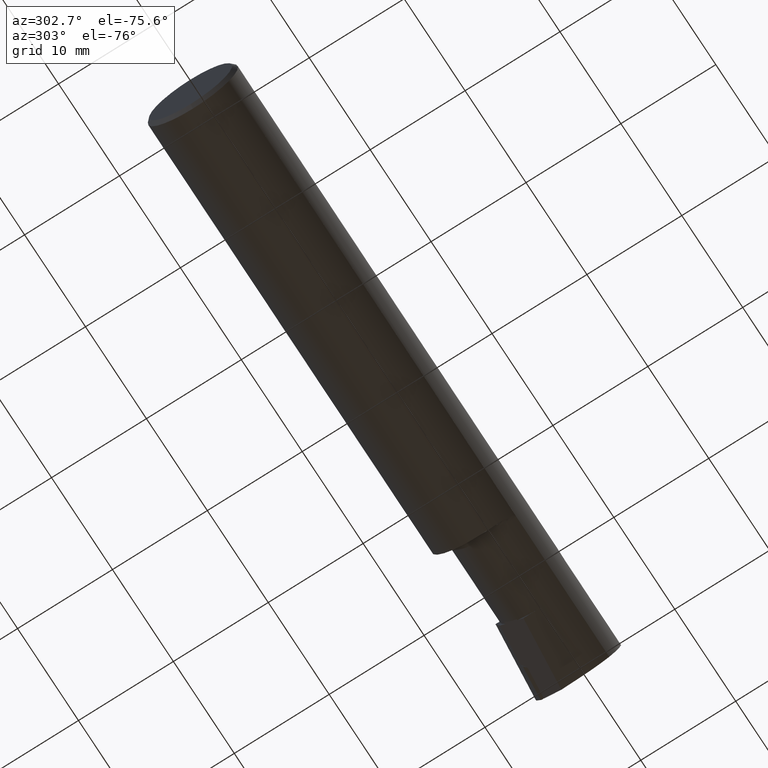
[diagram: clean part render]
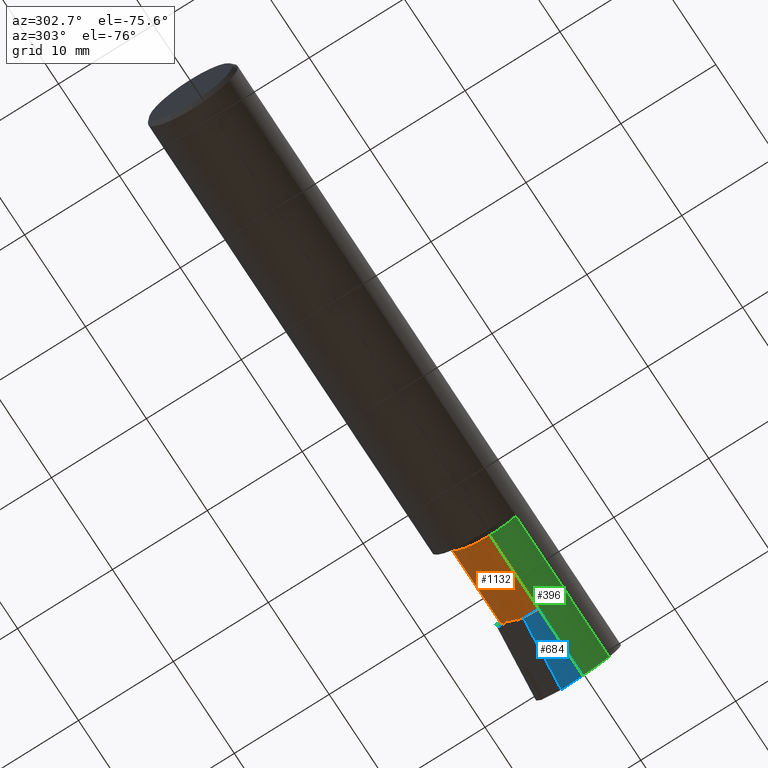
[diagram: same view with three faces highlighted in distinct colors, each labeled with its STEP entity id]
A machine part, auxiliary view with three faces highlighted in distinct colors.
Their STEP definitions:

[orange] entity #1132 — the highlighted cylindrical surface (partial cylindrical patch) has radius 4.064 mm, axis along (-1, -0, -0).
#8 = EDGE_LOOP ( 'NONE', ( #674, #503, #258, #694, #359, #315, #899, #286, #175, #1080, #753 ) ) ;
#10 = EDGE_CURVE ( 'NONE', #1174, #330, #780, .T. ) ;
#23 = LINE ( 'NONE', #225, #1188 ) ;
#40 = VERTEX_POINT ( 'NONE', #1094 ) ;
#54 = AXIS2_PLACEMENT_3D ( 'NONE', #222, #245, #1088 ) ;
#55 = CARTESIAN_POINT ( 'NONE',  ( 1.970050000000000301, -0.03734999999999999432, 0.1600000000000000033 ) ) ;
#62 = CARTESIAN_POINT ( 'NONE',  ( 2.189999999999999947, -0.03734999999999999432, 0.000000000000000000 ) ) ;
#68 = CARTESIAN_POINT ( 'NONE',  ( 2.036297396208620381, 0.1226207101223853457, 0.09375260379137920208 ) ) ;
#95 = EDGE_CURVE ( 'NONE', #1164, #1147, #23, .T. ) ;
#107 = CARTESIAN_POINT ( 'NONE',  ( 1.850000000000000311, 0.1226500000000000090, -3.414809992080329023E-17 ) ) ;
#113 = VERTEX_POINT ( 'NONE', #880 ) ;
#152 = VECTOR ( 'NONE', #764, 39.37007874015748143 ) ;
#165 = CARTESIAN_POINT ( 'NONE',  ( 2.129999999999999893, 0.1226499921874998761, 4.999999999973721212E-05 ) ) ;
#175 = ORIENTED_EDGE ( 'NONE', *, *, #1032, .F. ) ;
#187 = DIRECTION ( 'NONE',  ( -1.000000000000000000, -0.000000000000000000, -0.000000000000000000 ) ) ;
#222 = CARTESIAN_POINT ( 'NONE',  ( 2.129999999999999893, -0.03734999999999999432, 0.000000000000000000 ) ) ;
#225 = CARTESIAN_POINT ( 'NONE',  ( 1.850000000000000311, -0.03734999999999997350, -0.1600000000000000033 ) ) ;
#245 = DIRECTION ( 'NONE',  ( -1.000000000000000000, -0.000000000000000000, -0.000000000000000000 ) ) ;
#258 = ORIENTED_EDGE ( 'NONE', *, *, #790, .T. ) ;
#261 = VECTOR ( 'NONE', #187, 39.37007874015748143 ) ;
#263 = DIRECTION ( 'NONE',  ( 1.000000000000000000, 0.000000000000000000, 0.000000000000000000 ) ) ;
#279 = CARTESIAN_POINT ( 'NONE',  ( 2.187754451544412504, 0.04998017955827687570, -0.1340655276293346299 ) ) ;
#285 = CARTESIAN_POINT ( 'NONE',  ( 2.183339494671919123, 0.08760833798348244272, -0.1029474368865145734 ) ) ;
#286 = ORIENTED_EDGE ( 'NONE', *, *, #10, .T. ) ;
#299 = LINE ( 'NONE', #107, #152 ) ;
#315 = ORIENTED_EDGE ( 'NONE', *, *, #571, .T. ) ;
#322 = DIRECTION ( 'NONE',  ( -1.000000000000000000, -0.000000000000000000, -0.000000000000000000 ) ) ;
#329 = AXIS2_PLACEMENT_3D ( 'NONE', #62, #1137, #355 ) ;
#330 = VERTEX_POINT ( 'NONE', #950 ) ;
#355 = DIRECTION ( 'NONE',  ( 0.000000000000000000, 0.000000000000000000, 1.000000000000000000 ) ) ;
#359 = ORIENTED_EDGE ( 'NONE', *, *, #775, .F. ) ;
#383 = CARTESIAN_POINT ( 'NONE',  ( 2.189999999999999947, -0.03734999999999997350, -0.1600000000000000033 ) ) ;
#391 = CARTESIAN_POINT ( 'NONE',  ( 2.181738322109779915, 0.1002421959724120182, -0.08166019597998369628 ) ) ;
#397 = CARTESIAN_POINT ( 'NONE',  ( 2.184991283152642350, 0.07045385871877873907, -0.1207935802865314628 ) ) ;
#416 = EDGE_CURVE ( 'NONE', #1205, #1133, #572, .T. ) ;
#418 = EDGE_CURVE ( 'NONE', #582, #1174, #299, .T. ) ;
#422 = AXIS2_PLACEMENT_3D ( 'NONE', #913, #263, #557 ) ;
#452 = CARTESIAN_POINT ( 'NONE',  ( 2.189999999999999947, 0.09892832815658968160, -0.08383446352691030501 ) ) ;
#492 = CARTESIAN_POINT ( 'NONE',  ( 2.186606679638320117, 0.04968236991043942230, -0.1342585810582415384 ) ) ;
#497 = EDGE_CURVE ( 'NONE', #987, #113, #1034, .T. ) ;
#503 = ORIENTED_EDGE ( 'NONE', *, *, #95, .T. ) ;
#536 = CARTESIAN_POINT ( 'NONE',  ( 1.875000000000000000, -0.03734999999999999432, 0.1600000000000000033 ) ) ;
#557 = DIRECTION ( 'NONE',  ( 0.000000000000000000, 0.000000000000000000, -1.000000000000000000 ) ) ;
#571 = EDGE_CURVE ( 'NONE', #585, #582, #617, .T. ) ;
#572 = LINE ( 'NONE', #672, #261 ) ;
#582 = VERTEX_POINT ( 'NONE', #623 ) ;
#585 = VERTEX_POINT ( 'NONE', #1092 ) ;
#617 = CIRCLE ( 'NONE', #54, 0.1600000000000000033 ) ;
#619 = CARTESIAN_POINT ( 'NONE',  ( 2.189999999999999947, -0.03734999999999999432, 0.000000000000000000 ) ) ;
#623 = CARTESIAN_POINT ( 'NONE',  ( 2.129999999999999893, 0.1226500000000000090, -3.414809992080329023E-17 ) ) ;
#642 =( BOUNDED_CURVE ( )  B_SPLINE_CURVE ( 3, ( #1101, #1015, #646, #452 ),
 .UNSPECIFIED., .F., .F. ) 
 B_SPLINE_CURVE_WITH_KNOTS ( ( 4, 4 ),
 ( 2.906964023925628027, 2.922841759402726058 ),
 .UNSPECIFIED. ) 
 CURVE ( )  GEOMETRIC_REPRESENTATION_ITEM ( )  RATIONAL_B_SPLINE_CURVE ( ( 1.000000000000000000, 0.9999789915700160181, 0.9999789915700160181, 1.000000000000000000 ) ) 
 REPRESENTATION_ITEM ( '' )  );
#646 = CARTESIAN_POINT ( 'NONE',  ( 2.187340923238427770, 0.09937203329598455481, -0.08311319220188052859 ) ) ;
#672 = CARTESIAN_POINT ( 'NONE',  ( 1.850000000000000311, -0.03734999999999999432, 0.1600000000000000033 ) ) ;
#674 = ORIENTED_EDGE ( 'NONE', *, *, #806, .T. ) ;
#694 = ORIENTED_EDGE ( 'NONE', *, *, #416, .F. ) ;
#728 = DIRECTION ( 'NONE',  ( -1.000000000000000000, -0.000000000000000000, -0.000000000000000000 ) ) ;
#750 = CARTESIAN_POINT ( 'NONE',  ( 1.970050000000000301, -0.03734999999999999432, 0.1600000000000000033 ) ) ;
#753 = ORIENTED_EDGE ( 'NONE', *, *, #1201, .F. ) ;
#764 = DIRECTION ( 'NONE',  ( 1.000000000000000000, 0.000000000000000000, 0.000000000000000000 ) ) ;
#767 = CARTESIAN_POINT ( 'NONE',  ( 2.188885562505690885, 0.05027734521923681033, -0.1338714843797642329 ) ) ;
#772 = CARTESIAN_POINT ( 'NONE',  ( 2.189999999999999947, 0.05057386360349626353, -0.1336764534577192520 ) ) ;
#775 = EDGE_CURVE ( 'NONE', #585, #1205, #1256, .T. ) ;
#780 = CIRCLE ( 'NONE', #882, 0.1600000000000000033 ) ;
#790 = EDGE_CURVE ( 'NONE', #1147, #1133, #922, .T. ) ;
#806 = EDGE_CURVE ( 'NONE', #40, #1164, #1253, .T. ) ;
#825 = CARTESIAN_POINT ( 'NONE',  ( 1.970050000000000523, 0.05635260836670218099, 0.1600000000000000311 ) ) ;
#831 = DIRECTION ( 'NONE',  ( -1.000000000000000000, -0.000000000000000000, -0.000000000000000000 ) ) ;
#880 = CARTESIAN_POINT ( 'NONE',  ( 2.181738322109779915, 0.1002421959724120182, -0.08166019597998369628 ) ) ;
#882 = AXIS2_PLACEMENT_3D ( 'NONE', #619, #728, #1002 ) ;
#899 = ORIENTED_EDGE ( 'NONE', *, *, #418, .T. ) ;
#911 = CARTESIAN_POINT ( 'NONE',  ( 1.875000000000000000, -0.03734999999999997350, -0.1600000000000000033 ) ) ;
#913 = CARTESIAN_POINT ( 'NONE',  ( 1.875000000000000000, -0.03734999999999999432, 0.000000000000000000 ) ) ;
#918 = AXIS2_PLACEMENT_3D ( 'NONE', #1022, #831, #1206 ) ;
#922 = CIRCLE ( 'NONE', #422, 0.1600000000000000033 ) ;
#950 = CARTESIAN_POINT ( 'NONE',  ( 2.189999999999999947, 0.09892832815658968160, -0.08383446352691030501 ) ) ;
#987 = VERTEX_POINT ( 'NONE', #1180 ) ;
#1002 = DIRECTION ( 'NONE',  ( 0.000000000000000000, 0.000000000000000000, 1.000000000000000000 ) ) ;
#1015 = CARTESIAN_POINT ( 'NONE',  ( 2.184586972752179168, 0.09980999843555199424, -0.08238842112660262063 ) ) ;
#1022 = CARTESIAN_POINT ( 'NONE',  ( 1.850000000000000311, -0.03734999999999999432, 0.000000000000000000 ) ) ;
#1032 = EDGE_CURVE ( 'NONE', #113, #330, #642, .T. ) ;
#1034 =( BOUNDED_CURVE ( )  B_SPLINE_CURVE ( 3, ( #492, #397, #285, #391 ),
 .UNSPECIFIED., .F., .F. ) 
 B_SPLINE_CURVE_WITH_KNOTS ( ( 4, 4 ),
 ( 4.501254466373841190, 4.961288516796045656 ),
 .UNSPECIFIED. ) 
 CURVE ( )  GEOMETRIC_REPRESENTATION_ITEM ( )  RATIONAL_B_SPLINE_CURVE ( ( 1.000000000000000000, 0.9824416756658651551, 0.9824416756658651551, 1.000000000000000000 ) ) 
 REPRESENTATION_ITEM ( '' )  );
#1080 = ORIENTED_EDGE ( 'NONE', *, *, #497, .F. ) ;
#1088 = DIRECTION ( 'NONE',  ( 0.000000000000000000, 0.000000000000000000, 1.000000000000000000 ) ) ;
#1092 = CARTESIAN_POINT ( 'NONE',  ( 2.129999999999999893, 0.1226499921874998761, 4.999999999973721212E-05 ) ) ;
#1094 = CARTESIAN_POINT ( 'NONE',  ( 2.189999999999999947, 0.05057386360349626353, -0.1336764534577192520 ) ) ;
#1101 = CARTESIAN_POINT ( 'NONE',  ( 2.181738322109779915, 0.1002421959724120182, -0.08166019597998369628 ) ) ;
#1115 = FACE_OUTER_BOUND ( 'NONE', #8, .T. ) ;
#1129 = CYLINDRICAL_SURFACE ( 'NONE', #918, 0.1600000000000000033 ) ;
#1132 = ADVANCED_FACE ( 'NONE', ( #1115 ), #1129, .T. ) ;
#1133 = VERTEX_POINT ( 'NONE', #536 ) ;
#1137 = DIRECTION ( 'NONE',  ( -1.000000000000000000, -0.000000000000000000, -0.000000000000000000 ) ) ;
#1142 = CARTESIAN_POINT ( 'NONE',  ( 2.186606679638320117, 0.04968236991043942230, -0.1342585810582415384 ) ) ;
#1147 = VERTEX_POINT ( 'NONE', #911 ) ;
#1164 = VERTEX_POINT ( 'NONE', #383 ) ;
#1174 = VERTEX_POINT ( 'NONE', #1247 ) ;
#1180 = CARTESIAN_POINT ( 'NONE',  ( 2.186606679638320117, 0.04968236991043942230, -0.1342585810582415384 ) ) ;
#1188 = VECTOR ( 'NONE', #322, 39.37007874015748143 ) ;
#1200 =( BOUNDED_CURVE ( )  B_SPLINE_CURVE ( 3, ( #772, #767, #279, #1142 ),
 .UNSPECIFIED., .F., .F. ) 
 B_SPLINE_CURVE_WITH_KNOTS ( ( 4, 4 ),
 ( 3.360343547776860618, 3.366998074347831160 ),
 .UNSPECIFIED. ) 
 CURVE ( )  GEOMETRIC_REPRESENTATION_ITEM ( )  RATIONAL_B_SPLINE_CURVE ( ( 1.000000000000000000, 0.9999963097764139608, 0.9999963097764139608, 1.000000000000000000 ) ) 
 REPRESENTATION_ITEM ( '' )  );
#1201 = EDGE_CURVE ( 'NONE', #40, #987, #1200, .T. ) ;
#1205 = VERTEX_POINT ( 'NONE', #750 ) ;
#1206 = DIRECTION ( 'NONE',  ( 0.000000000000000000, 0.000000000000000000, 1.000000000000000000 ) ) ;
#1247 = CARTESIAN_POINT ( 'NONE',  ( 2.189999999999999947, 0.1226500000000000090, -3.414809992080329023E-17 ) ) ;
#1253 = CIRCLE ( 'NONE', #329, 0.1600000000000000033 ) ;
#1256 =( BOUNDED_CURVE ( )  B_SPLINE_CURVE ( 3, ( #165, #68, #825, #55 ),
 .UNSPECIFIED., .F., .F. ) 
 B_SPLINE_CURVE_WITH_KNOTS ( ( 4, 4 ),
 ( 4.712701480389775099, 6.283185307179586232 ),
 .UNSPECIFIED. ) 
 CURVE ( )  GEOMETRIC_REPRESENTATION_ITEM ( )  RATIONAL_B_SPLINE_CURVE ( ( 1.000000000000000000, 0.8048115053271877040, 0.8048115053271877040, 1.000000000000000000 ) ) 
 REPRESENTATION_ITEM ( '' )  );

[blue] entity #684 — the highlighted planar face has unit normal (0, 0, 1).
#3 = DIRECTION ( 'NONE',  ( 0.02634618898897572378, 0.9996528789163552364, -0.000000000000000000 ) ) ;
#30 = FACE_OUTER_BOUND ( 'NONE', #1085, .T. ) ;
#75 = DIRECTION ( 'NONE',  ( 1.000000000000000000, 0.000000000000000000, -0.000000000000000000 ) ) ;
#91 = VECTOR ( 'NONE', #752, 39.37007874015748143 ) ;
#110 = ORIENTED_EDGE ( 'NONE', *, *, #955, .F. ) ;
#146 = PLANE ( 'NONE',  #1148 ) ;
#161 = CARTESIAN_POINT ( 'NONE',  ( 2.478665149256253919, 0.05283123112360995494, -0.1600000000000000033 ) ) ;
#166 = LINE ( 'NONE', #921, #91 ) ;
#183 = CARTESIAN_POINT ( 'NONE',  ( 2.476288392475423983, -0.03734999999999997350, -0.1600000000000000033 ) ) ;
#251 = DIRECTION ( 'NONE',  ( 0.000000000000000000, 1.000000000000000000, 0.000000000000000000 ) ) ;
#274 = DIRECTION ( 'NONE',  ( 0.000000000000000000, 0.000000000000000000, 1.000000000000000000 ) ) ;
#314 = DIRECTION ( 'NONE',  ( 0.9953961983671778535, 0.09584575252023237735, -0.000000000000000000 ) ) ;
#332 = EDGE_CURVE ( 'NONE', #1164, #1245, #543, .T. ) ;
#353 = EDGE_CURVE ( 'NONE', #1169, #1164, #166, .T. ) ;
#356 = CARTESIAN_POINT ( 'NONE',  ( 2.189999999999999947, -0.03734999999999999432, -0.1600000000000000033 ) ) ;
#378 = CARTESIAN_POINT ( 'NONE',  ( 2.189999999999999947, 0.02503593865392240644, -0.1600000000000000033 ) ) ;
#383 = CARTESIAN_POINT ( 'NONE',  ( 2.189999999999999947, -0.03734999999999997350, -0.1600000000000000033 ) ) ;
#426 = EDGE_CURVE ( 'NONE', #1245, #783, #485, .T. ) ;
#440 = ORIENTED_EDGE ( 'NONE', *, *, #332, .T. ) ;
#485 = LINE ( 'NONE', #862, #920 ) ;
#486 = ORIENTED_EDGE ( 'NONE', *, *, #426, .T. ) ;
#543 = LINE ( 'NONE', #356, #1025 ) ;
#653 = CARTESIAN_POINT ( 'NONE',  ( 2.500000000000001332, -0.03734999999999999432, -0.1600000000000000033 ) ) ;
#684 = ADVANCED_FACE ( 'NONE', ( #30 ), #146, .F. ) ;
#752 = DIRECTION ( 'NONE',  ( -1.000000000000000000, -0.000000000000000000, -0.000000000000000000 ) ) ;
#783 = VERTEX_POINT ( 'NONE', #161 ) ;
#862 = CARTESIAN_POINT ( 'NONE',  ( 2.491200314294299112, 0.05403823023412254040, -0.1600000000000000033 ) ) ;
#868 = LINE ( 'NONE', #1170, #1041 ) ;
#920 = VECTOR ( 'NONE', #314, 39.37007874015748854 ) ;
#921 = CARTESIAN_POINT ( 'NONE',  ( 2.500000000000001332, -0.03734999999999997350, -0.1600000000000000033 ) ) ;
#955 = EDGE_CURVE ( 'NONE', #1169, #783, #868, .T. ) ;
#1025 = VECTOR ( 'NONE', #251, 39.37007874015748143 ) ;
#1039 = ORIENTED_EDGE ( 'NONE', *, *, #353, .T. ) ;
#1041 = VECTOR ( 'NONE', #3, 39.37007874015748143 ) ;
#1085 = EDGE_LOOP ( 'NONE', ( #440, #486, #110, #1039 ) ) ;
#1148 = AXIS2_PLACEMENT_3D ( 'NONE', #653, #274, #75 ) ;
#1164 = VERTEX_POINT ( 'NONE', #383 ) ;
#1169 = VERTEX_POINT ( 'NONE', #183 ) ;
#1170 = CARTESIAN_POINT ( 'NONE',  ( 2.481746091699616130, 0.1697313636084475386, -0.1600000000000000033 ) ) ;
#1245 = VERTEX_POINT ( 'NONE', #378 ) ;

[green] entity #396 — the highlighted cylindrical surface (partial cylindrical patch) has radius 4.064 mm, axis along (-1, -0, -0).
#18 = ORIENTED_EDGE ( 'NONE', *, *, #843, .T. ) ;
#23 = LINE ( 'NONE', #225, #1188 ) ;
#47 = CARTESIAN_POINT ( 'NONE',  ( 1.875000000000000000, -0.1458506693440427548, -0.1175908361731248936 ) ) ;
#53 = VECTOR ( 'NONE', #1042, 39.37007874015748143 ) ;
#91 = VECTOR ( 'NONE', #752, 39.37007874015748143 ) ;
#95 = EDGE_CURVE ( 'NONE', #1164, #1147, #23, .T. ) ;
#121 = ORIENTED_EDGE ( 'NONE', *, *, #368, .T. ) ;
#166 = LINE ( 'NONE', #921, #91 ) ;
#183 = CARTESIAN_POINT ( 'NONE',  ( 2.476288392475423983, -0.03734999999999997350, -0.1600000000000000033 ) ) ;
#195 = EDGE_LOOP ( 'NONE', ( #1082, #1108, #776, #121, #18 ) ) ;
#215 = DIRECTION ( 'NONE',  ( 0.000000000000000000, 0.000000000000000000, 1.000000000000000000 ) ) ;
#216 = VERTEX_POINT ( 'NONE', #977 ) ;
#225 = CARTESIAN_POINT ( 'NONE',  ( 1.850000000000000311, -0.03734999999999997350, -0.1600000000000000033 ) ) ;
#264 = LINE ( 'NONE', #936, #53 ) ;
#269 = CARTESIAN_POINT ( 'NONE',  ( 1.850000000000000311, -0.03734999999999999432, 0.000000000000000000 ) ) ;
#322 = DIRECTION ( 'NONE',  ( -1.000000000000000000, -0.000000000000000000, -0.000000000000000000 ) ) ;
#353 = EDGE_CURVE ( 'NONE', #1169, #1164, #166, .T. ) ;
#367 = CIRCLE ( 'NONE', #743, 0.1600000000000000033 ) ;
#368 = EDGE_CURVE ( 'NONE', #216, #792, #264, .T. ) ;
#371 = FACE_OUTER_BOUND ( 'NONE', #195, .T. ) ;
#383 = CARTESIAN_POINT ( 'NONE',  ( 2.189999999999999947, -0.03734999999999997350, -0.1600000000000000033 ) ) ;
#396 = ADVANCED_FACE ( 'NONE', ( #371 ), #1131, .T. ) ;
#460 = DIRECTION ( 'NONE',  ( 1.000000000000000000, 0.000000000000000000, 0.000000000000000000 ) ) ;
#555 = EDGE_CURVE ( 'NONE', #216, #1169, #994, .T. ) ;
#560 = DIRECTION ( 'NONE',  ( -1.000000000000000000, -0.000000000000000000, -0.000000000000000000 ) ) ;
#708 = CARTESIAN_POINT ( 'NONE',  ( 2.475904879864233799, -0.1159436613722071852, -0.1451859319188884556 ) ) ;
#713 = CARTESIAN_POINT ( 'NONE',  ( 2.476288392475423983, -0.03734999999999997350, -0.1600000000000000033 ) ) ;
#743 = AXIS2_PLACEMENT_3D ( 'NONE', #942, #460, #852 ) ;
#752 = DIRECTION ( 'NONE',  ( -1.000000000000000000, -0.000000000000000000, -0.000000000000000000 ) ) ;
#776 = ORIENTED_EDGE ( 'NONE', *, *, #555, .F. ) ;
#792 = VERTEX_POINT ( 'NONE', #47 ) ;
#798 = AXIS2_PLACEMENT_3D ( 'NONE', #269, #560, #215 ) ;
#807 = CARTESIAN_POINT ( 'NONE',  ( 2.478260734595986392, -0.1458506693440426993, -0.1175908361731249352 ) ) ;
#811 = CARTESIAN_POINT ( 'NONE',  ( 2.475215915314673332, -0.07804297771170461140, -0.1599999999999999756 ) ) ;
#843 = EDGE_CURVE ( 'NONE', #792, #1147, #367, .T. ) ;
#852 = DIRECTION ( 'NONE',  ( 0.000000000000000000, 0.000000000000000000, -1.000000000000000000 ) ) ;
#911 = CARTESIAN_POINT ( 'NONE',  ( 1.875000000000000000, -0.03734999999999997350, -0.1600000000000000033 ) ) ;
#921 = CARTESIAN_POINT ( 'NONE',  ( 2.500000000000001332, -0.03734999999999997350, -0.1600000000000000033 ) ) ;
#936 = CARTESIAN_POINT ( 'NONE',  ( 2.020000000000000462, -0.1458506693440427548, -0.1175908361731248936 ) ) ;
#942 = CARTESIAN_POINT ( 'NONE',  ( 1.875000000000000000, -0.03734999999999999432, 0.000000000000000000 ) ) ;
#977 = CARTESIAN_POINT ( 'NONE',  ( 2.478260734595986392, -0.1458506693440426993, -0.1175908361731249352 ) ) ;
#994 =( BOUNDED_CURVE ( )  B_SPLINE_CURVE ( 3, ( #807, #708, #811, #713 ),
 .UNSPECIFIED., .F., .F. ) 
 B_SPLINE_CURVE_WITH_KNOTS ( ( 4, 4 ),
 ( 5.765290843685597189, 6.510504952073413953 ),
 .UNSPECIFIED. ) 
 CURVE ( )  GEOMETRIC_REPRESENTATION_ITEM ( )  RATIONAL_B_SPLINE_CURVE ( ( 1.000000000000000000, 0.9542542848386187382, 0.9542542848386187382, 1.000000000000000000 ) ) 
 REPRESENTATION_ITEM ( '' )  );
#1042 = DIRECTION ( 'NONE',  ( -1.000000000000000000, -0.000000000000000000, -0.000000000000000000 ) ) ;
#1082 = ORIENTED_EDGE ( 'NONE', *, *, #95, .F. ) ;
#1108 = ORIENTED_EDGE ( 'NONE', *, *, #353, .F. ) ;
#1131 = CYLINDRICAL_SURFACE ( 'NONE', #798, 0.1600000000000000033 ) ;
#1147 = VERTEX_POINT ( 'NONE', #911 ) ;
#1164 = VERTEX_POINT ( 'NONE', #383 ) ;
#1169 = VERTEX_POINT ( 'NONE', #183 ) ;
#1188 = VECTOR ( 'NONE', #322, 39.37007874015748143 ) ;